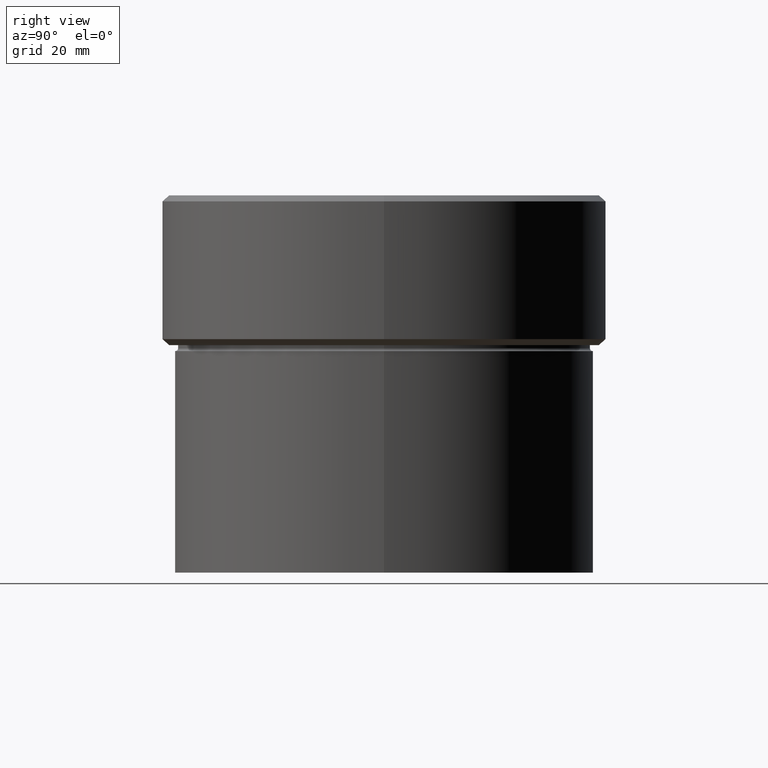
[diagram: clean part render]
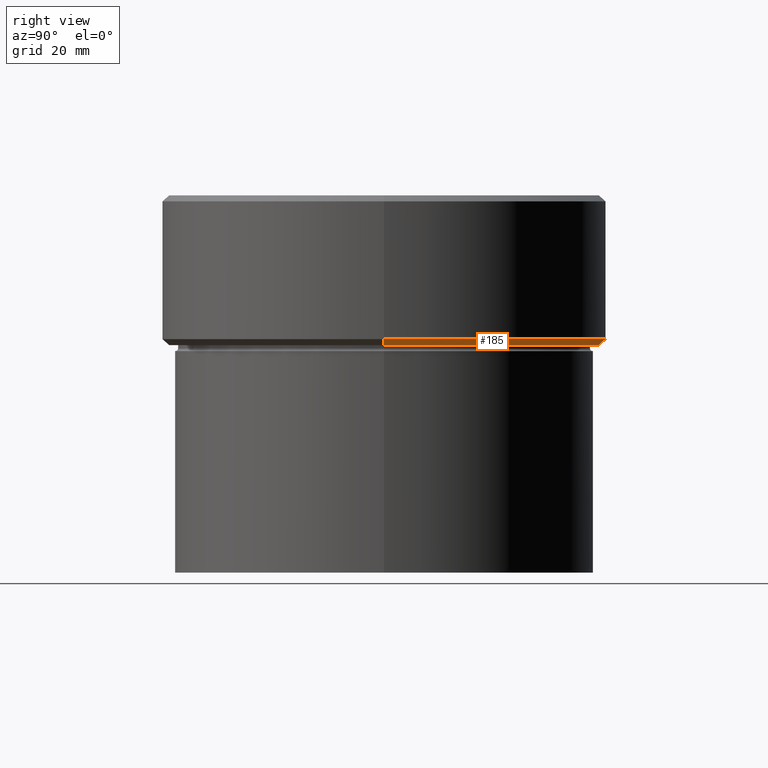
[diagram: same view with one face highlighted and labeled with its STEP entity id]
A machine part, right view. The second image highlights one B-rep face of the part: STEP entity #185.
In plain terms, the highlighted conical surface has half-angle 45 deg.
Its self-contained STEP definition (entity closure, byte-faithful):
#18 = EDGE_CURVE ( 'NONE', #502, #113, #528, .T. ) ;
#47 = AXIS2_PLACEMENT_3D ( 'NONE', #187, #154, #355 ) ;
#50 = FACE_OUTER_BOUND ( 'NONE', #118, .T. ) ;
#55 = AXIS2_PLACEMENT_3D ( 'NONE', #147, #523, #68 ) ;
#68 = DIRECTION ( 'NONE',  ( -1.000000000000000000, 0.000000000000000000, 0.000000000000000000 ) ) ;
#73 = DIRECTION ( 'NONE',  ( -0.7071067811865500152, 8.659560562354962440E-17, 0.7071067811865451302 ) ) ;
#79 = ORIENTED_EDGE ( 'NONE', *, *, #18, .F. ) ;
#83 = VERTEX_POINT ( 'NONE', #378 ) ;
#87 = ORIENTED_EDGE ( 'NONE', *, *, #468, .F. ) ;
#92 = DIRECTION ( 'NONE',  ( 0.000000000000000000, 0.000000000000000000, -1.000000000000000000 ) ) ;
#94 = CARTESIAN_POINT ( 'NONE',  ( 0.000000000000000000, 0.000000000000000000, -25.00000000000000000 ) ) ;
#95 = VECTOR ( 'NONE', #207, 1000.000000000000114 ) ;
#113 = VERTEX_POINT ( 'NONE', #177 ) ;
#117 = LINE ( 'NONE', #250, #95 ) ;
#118 = EDGE_LOOP ( 'NONE', ( #79, #478, #125, #87 ) ) ;
#125 = ORIENTED_EDGE ( 'NONE', *, *, #302, .F. ) ;
#147 = CARTESIAN_POINT ( 'NONE',  ( 0.000000000000000000, 0.000000000000000000, -23.99999999999997158 ) ) ;
#154 = DIRECTION ( 'NONE',  ( -0.000000000000000000, -0.000000000000000000, 1.000000000000000000 ) ) ;
#177 = CARTESIAN_POINT ( 'NONE',  ( 35.99999999999996447, 0.000000000000000000, -25.00000000000000000 ) ) ;
#185 = ADVANCED_FACE ( 'NONE', ( #50 ), #352, .T. ) ;
#187 = CARTESIAN_POINT ( 'NONE',  ( 0.000000000000000000, 0.000000000000000000, -23.99999999999997158 ) ) ;
#207 = DIRECTION ( 'NONE',  ( 0.7071067811865500152, 0.000000000000000000, 0.7071067811865451302 ) ) ;
#212 = CARTESIAN_POINT ( 'NONE',  ( -35.99999999999996447, 4.469960816887836852E-15, -25.00000000000000000 ) ) ;
#242 = EDGE_CURVE ( 'NONE', #502, #83, #273, .T. ) ;
#244 = CARTESIAN_POINT ( 'NONE',  ( 37.00000000000000000, 0.000000000000000000, -23.99999999999997158 ) ) ;
#250 = CARTESIAN_POINT ( 'NONE',  ( 37.00000000000000000, 0.000000000000000000, -23.99999999999997158 ) ) ;
#273 = LINE ( 'NONE', #441, #472 ) ;
#302 = EDGE_CURVE ( 'NONE', #390, #83, #342, .T. ) ;
#342 = CIRCLE ( 'NONE', #55, 37.00000000000000000 ) ;
#352 = CONICAL_SURFACE ( 'NONE', #47, 37.00000000000000000, 0.7853981633974517207 ) ;
#355 = DIRECTION ( 'NONE',  ( 1.000000000000000000, 0.000000000000000000, 0.000000000000000000 ) ) ;
#378 = CARTESIAN_POINT ( 'NONE',  ( -37.00000000000000000, 4.531193156845206793E-15, -23.99999999999997158 ) ) ;
#390 = VERTEX_POINT ( 'NONE', #244 ) ;
#425 = AXIS2_PLACEMENT_3D ( 'NONE', #94, #92, #516 ) ;
#441 = CARTESIAN_POINT ( 'NONE',  ( -37.00000000000000000, 4.531193156845206793E-15, -23.99999999999997158 ) ) ;
#468 = EDGE_CURVE ( 'NONE', #113, #390, #117, .T. ) ;
#472 = VECTOR ( 'NONE', #73, 1000.000000000000114 ) ;
#478 = ORIENTED_EDGE ( 'NONE', *, *, #242, .T. ) ;
#502 = VERTEX_POINT ( 'NONE', #212 ) ;
#516 = DIRECTION ( 'NONE',  ( -1.000000000000000000, 0.000000000000000000, 0.000000000000000000 ) ) ;
#523 = DIRECTION ( 'NONE',  ( -0.000000000000000000, -0.000000000000000000, 1.000000000000000000 ) ) ;
#528 = CIRCLE ( 'NONE', #425, 35.99999999999996447 ) ;